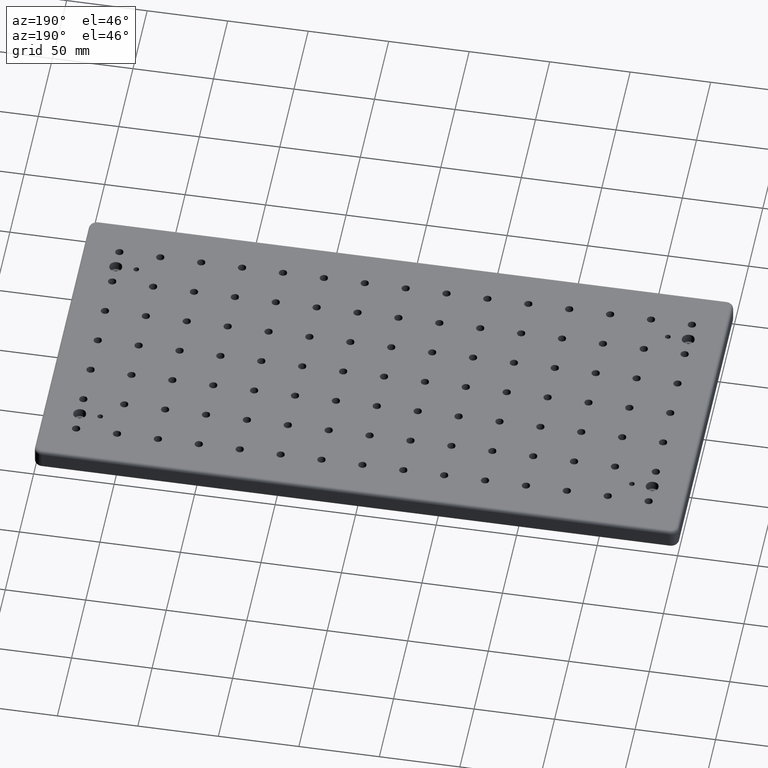
[diagram: clean part render]
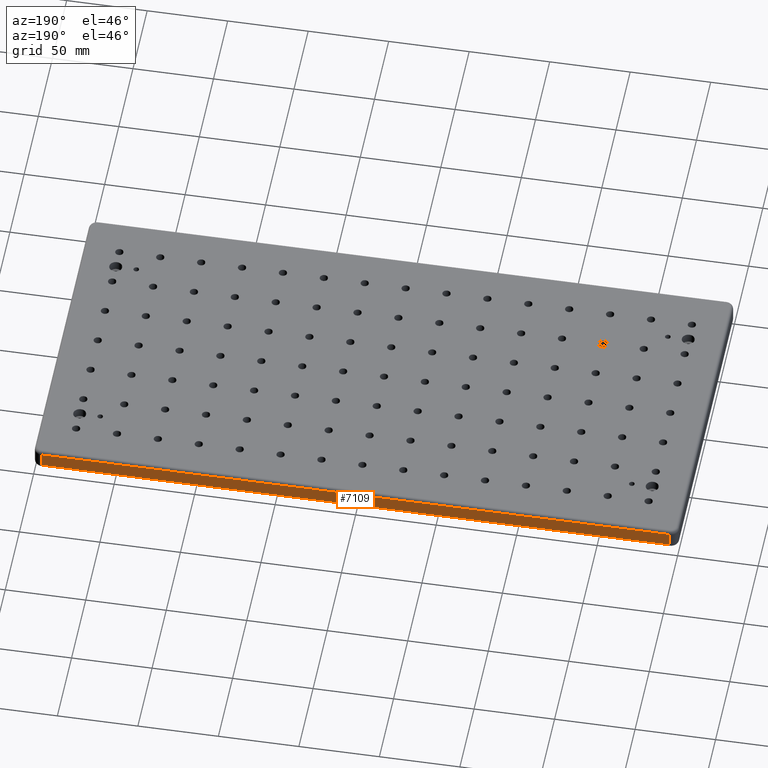
[diagram: same view with one face highlighted and labeled with its STEP entity id]
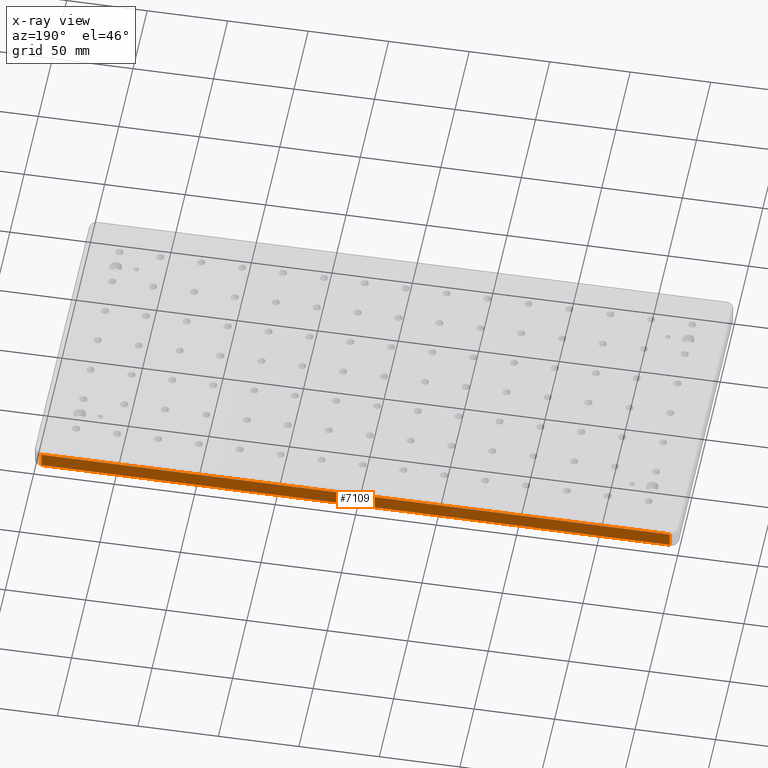
[diagram: x-ray of the same camera — body ghosted, the highlighted face saturated]
A machine part, auxiliary view. The second image highlights one B-rep face of the part: STEP entity #7109.
The next image is the same camera in x-ray: the body ghosted, the highlighted face saturated — about 0% of this face is hidden behind the body in this view.
In plain terms, the highlighted planar face has unit normal (-0, 1, 0).
Its self-contained STEP definition (entity closure, byte-faithful):
#329 = VERTEX_POINT ( 'NONE', #4894 ) ;
#484 = CARTESIAN_POINT ( 'NONE',  ( 195.0000000000001100, 100.0000000000000400, -2.000000000000000000 ) ) ;
#982 = LINE ( 'NONE', #7019, #3263 ) ;
#1102 = DIRECTION ( 'NONE',  ( 0.0000000000000000000, 0.0000000000000000000, 1.000000000000000000 ) ) ;
#1361 = CARTESIAN_POINT ( 'NONE',  ( -195.0000000000001100, 100.0000000000000000, -13.00000000000000000 ) ) ;
#1460 = PLANE ( 'NONE',  #9025 ) ;
#1702 = EDGE_CURVE ( 'NONE', #6308, #329, #2989, .T. ) ;
#2006 = CARTESIAN_POINT ( 'NONE',  ( -195.0000000000001100, 100.0000000000000000, -11.00000000000000000 ) ) ;
#2140 = DIRECTION ( 'NONE',  ( -1.067522139062650100E-016, 1.000000000000000000, 0.0000000000000000000 ) ) ;
#2161 = VECTOR ( 'NONE', #5824, 1000.000000000000000 ) ;
#2333 = EDGE_CURVE ( 'NONE', #7042, #2689, #8794, .T. ) ;
#2645 = FACE_OUTER_BOUND ( 'NONE', #7871, .T. ) ;
#2689 = VERTEX_POINT ( 'NONE', #2006 ) ;
#2910 = DIRECTION ( 'NONE',  ( -1.000000000000000000, -1.067522139062650100E-016, 0.0000000000000000000 ) ) ;
#2989 = LINE ( 'NONE', #484, #3903 ) ;
#3209 = EDGE_CURVE ( 'NONE', #7042, #329, #982, .T. ) ;
#3218 = ORIENTED_EDGE ( 'NONE', *, *, #3209, .F. ) ;
#3263 = VECTOR ( 'NONE', #6227, 1000.000000000000000 ) ;
#3651 = CARTESIAN_POINT ( 'NONE',  ( -195.0000000000001100, 100.0000000000000000, -2.000000000000003600 ) ) ;
#3717 = EDGE_CURVE ( 'NONE', #2689, #6308, #7959, .T. ) ;
#3903 = VECTOR ( 'NONE', #7152, 1000.000000000000000 ) ;
#4073 = CARTESIAN_POINT ( 'NONE',  ( -195.0000000000001100, 100.0000000000000000, -13.00000000000000000 ) ) ;
#4894 = CARTESIAN_POINT ( 'NONE',  ( 195.0000000000001100, 100.0000000000000100, -2.000000000000001800 ) ) ;
#5067 = CARTESIAN_POINT ( 'NONE',  ( -195.0000000000001100, 100.0000000000000000, -11.00000000000000000 ) ) ;
#5824 = DIRECTION ( 'NONE',  ( -1.000000000000000000, -1.067522139062650100E-016, 0.0000000000000000000 ) ) ;
#5883 = ORIENTED_EDGE ( 'NONE', *, *, #2333, .T. ) ;
#5953 = ORIENTED_EDGE ( 'NONE', *, *, #3717, .T. ) ;
#6227 = DIRECTION ( 'NONE',  ( 0.0000000000000000000, 0.0000000000000000000, 1.000000000000000000 ) ) ;
#6308 = VERTEX_POINT ( 'NONE', #3651 ) ;
#7019 = CARTESIAN_POINT ( 'NONE',  ( 195.0000000000001100, 100.0000000000000100, -13.00000000000000000 ) ) ;
#7042 = VERTEX_POINT ( 'NONE', #7120 ) ;
#7109 = ADVANCED_FACE ( 'NONE', ( #2645 ), #1460, .T. ) ;
#7120 = CARTESIAN_POINT ( 'NONE',  ( 195.0000000000001100, 100.0000000000000100, -11.00000000000000000 ) ) ;
#7152 = DIRECTION ( 'NONE',  ( 1.000000000000000000, 1.067522139062650100E-016, -0.0000000000000000000 ) ) ;
#7871 = EDGE_LOOP ( 'NONE', ( #3218, #5883, #5953, #8076 ) ) ;
#7959 = LINE ( 'NONE', #4073, #8746 ) ;
#8076 = ORIENTED_EDGE ( 'NONE', *, *, #1702, .T. ) ;
#8746 = VECTOR ( 'NONE', #1102, 1000.000000000000000 ) ;
#8794 = LINE ( 'NONE', #5067, #2161 ) ;
#9025 = AXIS2_PLACEMENT_3D ( 'NONE', #1361, #2140, #2910 ) ;